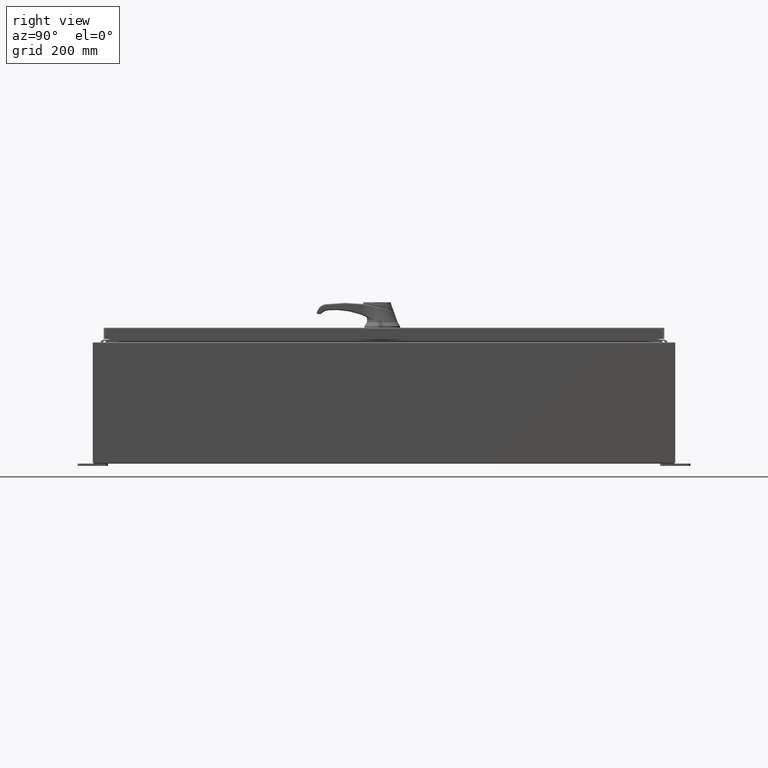
[diagram: clean part render]
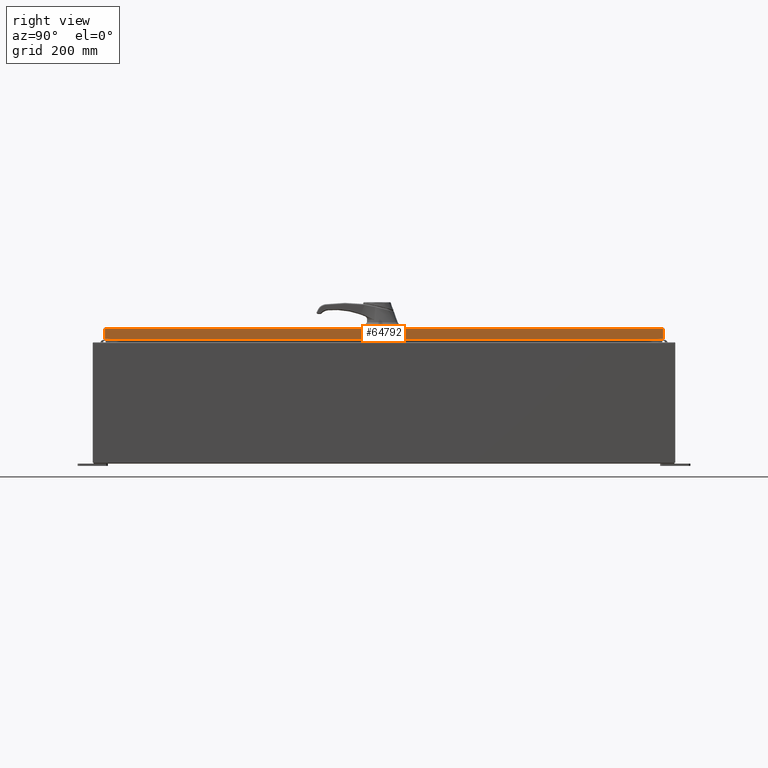
[diagram: same view with one face highlighted and labeled with its STEP entity id]
A machine part, right view. The second image highlights one B-rep face of the part: STEP entity #64792.
In plain terms, the highlighted planar face has unit normal (1, 0, 0).
Its self-contained STEP definition (entity closure, byte-faithful):
#1907 = LINE ( 'NONE', #40800, #108178 ) ;
#3276 = LINE ( 'NONE', #24712, #27342 ) ;
#4300 = EDGE_LOOP ( 'NONE', ( #29413, #35044, #10373, #55251 ) ) ;
#5378 = LINE ( 'NONE', #46816, #56816 ) ;
#6407 = CARTESIAN_POINT ( 'NONE',  ( 14.07799999999999900, 23.00515786437628000, -0.9376999999999997600 ) ) ;
#10373 = ORIENTED_EDGE ( 'NONE', *, *, #29655, .T. ) ;
#12953 = DIRECTION ( 'NONE',  ( 2.532419924601866100E-015, 0.0000000000000000000, -1.000000000000000000 ) ) ;
#15303 = CARTESIAN_POINT ( 'NONE',  ( 14.07799999999999800, 23.00515786437627200, -0.08770000000000008300 ) ) ;
#24712 = CARTESIAN_POINT ( 'NONE',  ( 14.07799999999999800, 0.0000000000000000000, -0.08770000000000008300 ) ) ;
#27342 = VECTOR ( 'NONE', #96733, 39.37007874015748100 ) ;
#29413 = ORIENTED_EDGE ( 'NONE', *, *, #54625, .F. ) ;
#29655 = EDGE_CURVE ( 'NONE', #86403, #31684, #5378, .T. ) ;
#30919 = DIRECTION ( 'NONE',  ( -2.532419924601866100E-015, -6.982962677686265900E-015, 1.000000000000000000 ) ) ;
#31684 = VERTEX_POINT ( 'NONE', #15303 ) ;
#32421 = DIRECTION ( 'NONE',  ( 0.0000000000000000000, -1.000000000000000000, 0.0000000000000000000 ) ) ;
#35044 = ORIENTED_EDGE ( 'NONE', *, *, #92779, .F. ) ;
#36007 = VERTEX_POINT ( 'NONE', #68431 ) ;
#40800 = CARTESIAN_POINT ( 'NONE',  ( 14.07799999999999800, -23.00515786437626900, -0.07469999999999980800 ) ) ;
#42728 = CARTESIAN_POINT ( 'NONE',  ( 14.07799999999999900, -23.09400000000000100, -0.9376999999999997600 ) ) ;
#42938 = VERTEX_POINT ( 'NONE', #79269 ) ;
#46816 = CARTESIAN_POINT ( 'NONE',  ( 14.07799999999999800, 23.00515786437627600, 1.965563801157768800E-013 ) ) ;
#53843 = CARTESIAN_POINT ( 'NONE',  ( 14.07799999999999800, 0.0000000000000000000, 3.591222135455664500E-014 ) ) ;
#54438 = VECTOR ( 'NONE', #32421, 39.37007874015748100 ) ;
#54625 = EDGE_CURVE ( 'NONE', #36007, #42938, #1907, .T. ) ;
#55251 = ORIENTED_EDGE ( 'NONE', *, *, #91138, .T. ) ;
#56816 = VECTOR ( 'NONE', #87429, 39.37007874015748100 ) ;
#64792 = ADVANCED_FACE ( 'NONE', ( #110130 ), #93954, .T. ) ;
#68431 = CARTESIAN_POINT ( 'NONE',  ( 14.07799999999999900, -23.00515786437626200, -0.9376999999999997600 ) ) ;
#74648 = DIRECTION ( 'NONE',  ( 1.000000000000000000, 0.0000000000000000000, 2.532419924601866100E-015 ) ) ;
#79269 = CARTESIAN_POINT ( 'NONE',  ( 14.07799999999999800, -23.00515786437626900, -0.08770000000000008300 ) ) ;
#86403 = VERTEX_POINT ( 'NONE', #6407 ) ;
#87429 = DIRECTION ( 'NONE',  ( -2.532419924601866100E-015, -6.982962677686265900E-015, 1.000000000000000000 ) ) ;
#89580 = AXIS2_PLACEMENT_3D ( 'NONE', #53843, #74648, #12953 ) ;
#91138 = EDGE_CURVE ( 'NONE', #31684, #42938, #3276, .T. ) ;
#92779 = EDGE_CURVE ( 'NONE', #86403, #36007, #130065, .T. ) ;
#93954 = PLANE ( 'NONE',  #89580 ) ;
#96733 = DIRECTION ( 'NONE',  ( 0.0000000000000000000, -1.000000000000000000, 0.0000000000000000000 ) ) ;
#108178 = VECTOR ( 'NONE', #30919, 39.37007874015748100 ) ;
#110130 = FACE_OUTER_BOUND ( 'NONE', #4300, .T. ) ;
#130065 = LINE ( 'NONE', #42728, #54438 ) ;